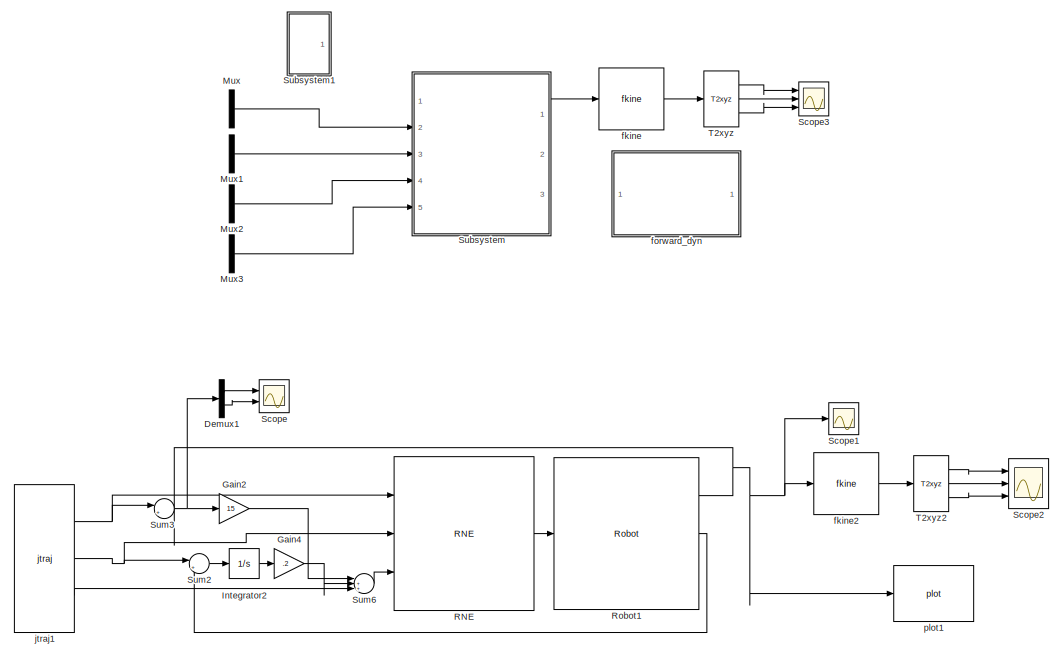
[diagram: root canvas - part 1/3, top right region]
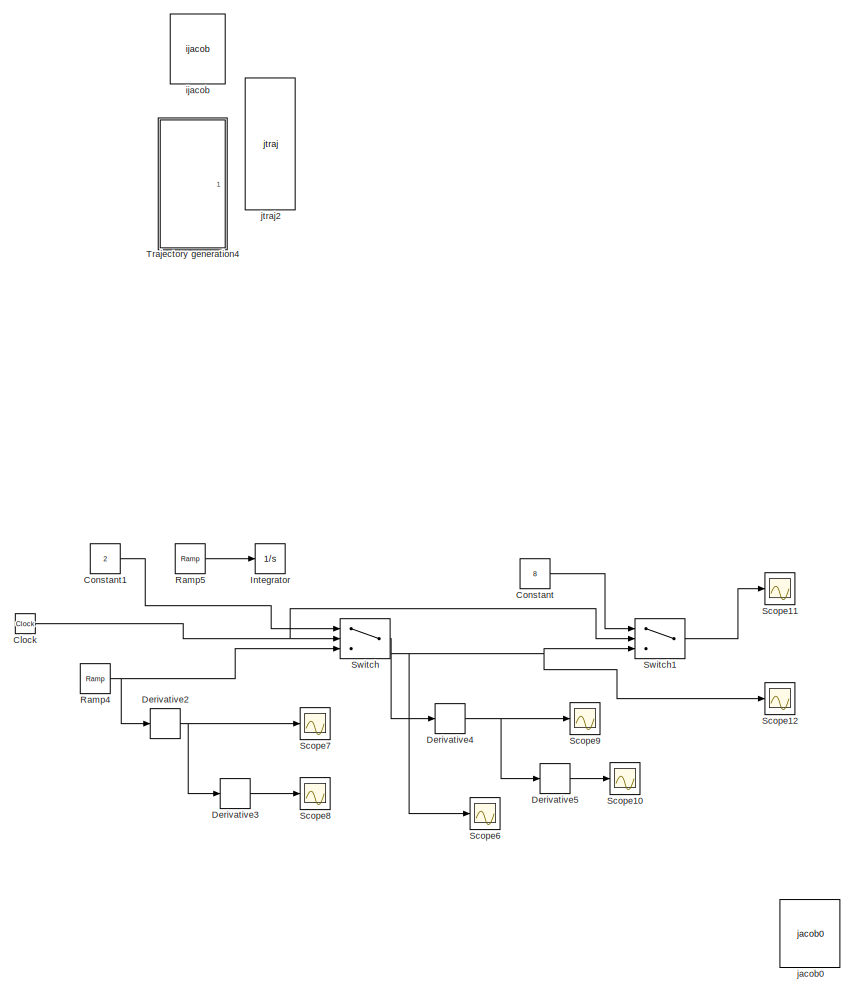
[diagram: root canvas - part 2/3, bottom left region]
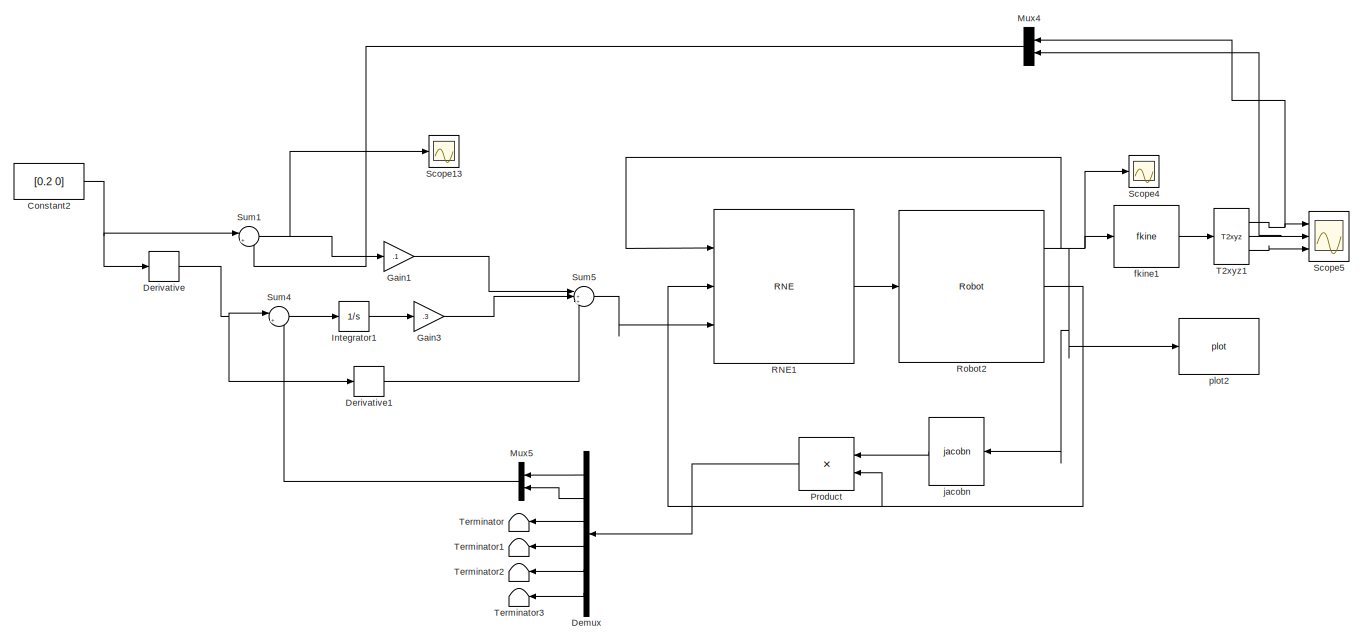
[diagram: root canvas - part 3/3, bottom right region]
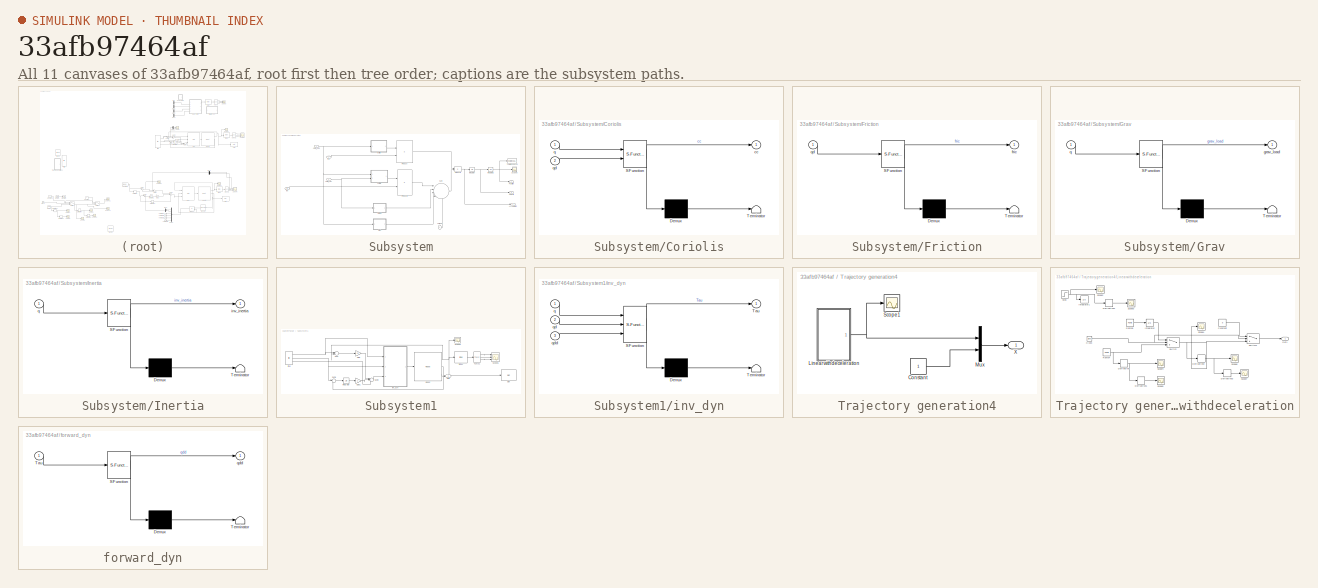
[diagram: thumbnail index - all 11 canvases of the model, root first then tree order]
MODEL slx_33afb97464af
KIND model
CONFIG AbsTol = auto
CONFIG EnableMultiTasking = off
CONFIG FixedStep = auto
CONFIG MaxStep = auto
CONFIG MinStep = auto
CONFIG RelTol = 1e-3
CONFIG SampleTimeConstraint = Unconstrained
CONFIG Solver = VariableStepAuto
CONFIG SolverName = VariableStepAuto
CONFIG StartTime = 0.0
CONFIG StopTime = 10
BLOCK [Clock] Clock
  Commented = on
BLOCK [Constant] Constant
  Commented = on
  Value = 8
BLOCK [Constant] Constant1
  Commented = on
  Value = 2
BLOCK [Constant] Constant2
  Commented = on
  Value = [0.2 0]
BLOCK [Demux] Demux
  Commented = on
  DisplayOption = bar
  Outputs = 6
  Ports = [1, 6]
BLOCK [Demux] Demux1
  DisplayOption = bar
  Outputs = 2
  Ports = [1, 2]
BLOCK [Derivative] Derivative
  Commented = on
BLOCK [Derivative] Derivative1
  Commented = on
BLOCK [Derivative] Derivative2
  Commented = on
BLOCK [Derivative] Derivative3
  Commented = on
BLOCK [Derivative] Derivative4
  Commented = on
BLOCK [Derivative] Derivative5
  Commented = on
BLOCK [Gain] Gain1
  Commented = on
  Gain = .1
  OutDataTypeStr = Inherit: Inherit via internal rule
  ParamDataTypeStr = Inherit: Inherit via internal rule
  SaturateOnIntegerOverflow = off
BLOCK [Gain] Gain2
  Gain = 15
  OutDataTypeStr = Inherit: Inherit via internal rule
  ParamDataTypeStr = Inherit: Inherit via internal rule
  SaturateOnIntegerOverflow = off
BLOCK [Gain] Gain3
  Commented = on
  Gain = .3
  OutDataTypeStr = Inherit: Inherit via internal rule
  ParamDataTypeStr = Inherit: Inherit via internal rule
  SaturateOnIntegerOverflow = off
BLOCK [Gain] Gain4
  Gain = .2
  OutDataTypeStr = Inherit: Inherit via internal rule
  ParamDataTypeStr = Inherit: Inherit via internal rule
  SaturateOnIntegerOverflow = off
BLOCK [Integrator] Integrator
  Commented = on
  IgnoreLimit = on
  InitialCondition = 2
  LowerSaturationLimit = 0
  Ports = [1, 1]
  UpperSaturationLimit = 8
  ZeroCross = off
BLOCK [Integrator] Integrator1
  Commented = on
  Ports = [1, 1]
BLOCK [Integrator] Integrator2
  Ports = [1, 1]
BLOCK [Mux] Mux
  Commented = on
  DisplayOption = bar
  Inputs = 2
  Ports = [2, 1]
BLOCK [Mux] Mux1
  Commented = on
  DisplayOption = bar
  Inputs = 2
  Ports = [2, 1]
BLOCK [Mux] Mux2
  Commented = on
  DisplayOption = bar
  Inputs = 2
  Ports = [2, 1]
BLOCK [Mux] Mux3
  Commented = on
  DisplayOption = bar
  Inputs = 2
  Ports = [2, 1]
BLOCK [Mux] Mux4
  Commented = on
  DisplayOption = bar
  Inputs = 2
  Ports = [2, 1]
BLOCK [Mux] Mux5
  Commented = on
  DisplayOption = bar
  Inputs = 2
  Ports = [2, 1]
BLOCK [Product] Product
  Commented = on
  InputSameDT = off
  Multiplication = Matrix(*)
  OutDataTypeStr = Inherit: Inherit via internal rule
  Ports = [2, 1]
  RndMeth = Floor
  SaturateOnIntegerOverflow = off
BLOCK [Reference] RNE  REF=roblocks/Arm/RNE  (lib defined in mdl_2a292b13c81b, mdl_69400f8cfe22, +12 more)
  Ports = [3, 1]
  SourceBlock = roblocks/Arm/RNE
BLOCK [Reference] RNE1  REF=roblocks/Arm/RNE  (lib defined in mdl_2a292b13c81b, mdl_69400f8cfe22, +12 more)
  Commented = on
  Ports = [3, 1]
  SourceBlock = roblocks/Arm/RNE
BLOCK [Reference] Ramp4  REF=simulink/Sources/Ramp
  Commented = on
  Ports = [0, 1]
  SourceBlock = simulink/Sources/Ramp
  SourceProductBaseCode = SL
  SourceProductName = Simulink
  SourceType = Ramp
BLOCK [Reference] Ramp5  REF=simulink/Sources/Ramp
  Commented = on
  Ports = [0, 1]
  SourceBlock = simulink/Sources/Ramp
  SourceProductBaseCode = SL
  SourceProductName = Simulink
  SourceType = Ramp
BLOCK [Reference] Robot1  REF=roblocks/Arm/Robot  (lib defined in mdl_2a292b13c81b, mdl_69400f8cfe22, +12 more)
  Ports = [1, 3]
  SourceBlock = roblocks/Arm/Robot
BLOCK [Reference] Robot2  REF=roblocks/Arm/Robot  (lib defined in mdl_2a292b13c81b, mdl_69400f8cfe22, +12 more)
  Commented = on
  Ports = [1, 3]
  SourceBlock = roblocks/Arm/Robot
BLOCK [Scope] Scope
  NumInputPorts = 2
  Ports = [2]
  ScopeSpecificationString = Simulink.scopes.TimeScopeBlockCfg('CurrentConfiguration', extmgr.ConfigurationSet(extmgr.Configuration('Core','General UI',true),extmgr.Configuration('Core','Source UI',true),extmgr.Configuration('Sources','WiredSimulink',true,'DataLoggingVariableName','ScopeData1'),extmgr.Configuration('Visuals','Time Domain',true,'SerializedDisplays',{struct('MinYLimReal','-0.00001','MaxYLimReal','0.00001','YLab...<+2001ch>
BLOCK [Scope] Scope1
  NumInputPorts = 1
  Ports = [1]
  ScopeSpecificationString = Simulink.scopes.TimeScopeBlockCfg('CurrentConfiguration', extmgr.ConfigurationSet(extmgr.Configuration('Core','General UI',true),extmgr.Configuration('Core','Source UI',true),extmgr.Configuration('Sources','WiredSimulink',true),extmgr.Configuration('Visuals','Time Domain',true,'SerializedDisplays',{struct('MinYLimReal','-0.19636','MaxYLimReal','1.7672','YLabelReal','','MinYLimMag','0.00000','MaxYL...<+1372ch>
BLOCK [Scope] Scope10
  Commented = on
  NumInputPorts = 1
  Ports = [1]
  ScopeSpecificationString = Simulink.scopes.TimeScopeBlockCfg('CurrentConfiguration', extmgr.ConfigurationSet(extmgr.Configuration('Core','General UI',true),extmgr.Configuration('Core','Source UI',true),extmgr.Configuration('Sources','WiredSimulink',true,'DataLoggingVariableName','ScopeData1','DataLoggingLimitDataPoints',true,'DataLoggingSaveFormat','Array','DataLoggingDecimation','1','DataLoggingDecimateData',true),extmgr.C...<+897ch>
BLOCK [Scope] Scope11
  Commented = on
  NumInputPorts = 1
  Ports = [1]
  ScopeSpecificationString = Simulink.scopes.TimeScopeBlockCfg('CurrentConfiguration', extmgr.ConfigurationSet(extmgr.Configuration('Core','General UI',true),extmgr.Configuration('Core','Source UI',true),extmgr.Configuration('Sources','WiredSimulink',true,'DataLoggingVariableName','ScopeData6','DataLoggingLimitDataPoints',true,'DataLoggingSaveFormat','Array','DataLoggingDecimation','1','DataLoggingDecimateData',true),extmgr.C...<+1633ch>
BLOCK [Scope] Scope12
  Commented = on
  NumInputPorts = 1
  Ports = [1]
  ScopeSpecificationString = Simulink.scopes.TimeScopeBlockCfg('CurrentConfiguration', extmgr.ConfigurationSet(extmgr.Configuration('Core','General UI',true),extmgr.Configuration('Core','Source UI',true),extmgr.Configuration('Sources','WiredSimulink',true,'DataLoggingVariableName','ScopeData7','DataLoggingLimitDataPoints',true,'DataLoggingSaveFormat','Array','DataLoggingDecimation','1','DataLoggingDecimateData',true),extmgr.C...<+1632ch>
BLOCK [Scope] Scope13
  Commented = on
  NumInputPorts = 1
  Ports = [1]
  ScopeSpecificationString = Simulink.scopes.TimeScopeBlockCfg('CurrentConfiguration', extmgr.ConfigurationSet(extmgr.Configuration('Core','General UI',true),extmgr.Configuration('Core','Source UI',true),extmgr.Configuration('Sources','WiredSimulink',true,'DataLoggingVariableName','ScopeData8'),extmgr.Configuration('Visuals','Time Domain',true,'SerializedDisplays',{struct('MinYLimReal','-0.29297','MaxYLimReal','0.51733','YLab...<+1407ch>
BLOCK [Scope] Scope2
  NumInputPorts = 3
  Ports = [3]
  ScopeSpecificationString = Simulink.scopes.TimeScopeBlockCfg('CurrentConfiguration', extmgr.ConfigurationSet(extmgr.Configuration('Core','General UI',true),extmgr.Configuration('Core','Source UI',true),extmgr.Configuration('Sources','WiredSimulink',true,'DataLoggingVariableName','ScopeData1'),extmgr.Configuration('Visuals','Time Domain',true,'SerializedDisplays',{struct('MinYLimReal','0.18124','MaxYLimReal','0.36875','YLabe...<+2773ch>
BLOCK [Scope] Scope3
  Commented = on
  NumInputPorts = 3
  Ports = [3]
  ScopeSpecificationString = Simulink.scopes.TimeScopeBlockCfg('CurrentConfiguration', extmgr.ConfigurationSet(extmgr.Configuration('Core','General UI',true),extmgr.Configuration('Core','Source UI',true),extmgr.Configuration('Sources','WiredSimulink',true,'DataLoggingVariableName','ScopeData2'),extmgr.Configuration('Visuals','Time Domain',true,'SerializedDisplays',{struct('MinYLimReal','0.17079','MaxYLimReal','0.36991','YLabe...<+2774ch>
BLOCK [Scope] Scope4
  Commented = on
  NumInputPorts = 1
  Ports = [1]
  ScopeSpecificationString = Simulink.scopes.TimeScopeBlockCfg('CurrentConfiguration', extmgr.ConfigurationSet(extmgr.Configuration('Core','General UI',true),extmgr.Configuration('Core','Source UI',true),extmgr.Configuration('Sources','WiredSimulink',true,'DataLoggingVariableName','ScopeData4'),extmgr.Configuration('Visuals','Time Domain',true,'SerializedDisplays',{struct('MinYLimReal','-2.36019','MaxYLimReal','9.57822','YLab...<+1415ch>
BLOCK [Scope] Scope5
  Commented = on
  NumInputPorts = 3
  Ports = [3]
  ScopeSpecificationString = Simulink.scopes.TimeScopeBlockCfg('CurrentConfiguration', extmgr.ConfigurationSet(extmgr.Configuration('Core','General UI',true),extmgr.Configuration('Core','Source UI',true),extmgr.Configuration('Sources','WiredSimulink',true,'DataLoggingVariableName','ScopeData7'),extmgr.Configuration('Visuals','Time Domain',true,'SerializedDisplays',{struct('MinYLimReal','-0.30959','MaxYLimReal','0.42329','YLab...<+2778ch>
BLOCK [Scope] Scope6
  Commented = on
  NumInputPorts = 1
  Ports = [1]
  ScopeSpecificationString = Simulink.scopes.TimeScopeBlockCfg('CurrentConfiguration', extmgr.ConfigurationSet(extmgr.Configuration('Core','General UI',true),extmgr.Configuration('Core','Source UI',true),extmgr.Configuration('Sources','WiredSimulink',true,'DataLoggingVariableName','ScopeData2','DataLoggingLimitDataPoints',true,'DataLoggingSaveFormat','Array','DataLoggingDecimation','1','DataLoggingDecimateData',true),extmgr.C...<+898ch>
BLOCK [Scope] Scope7
  Commented = on
  NumInputPorts = 1
  Ports = [1]
  ScopeSpecificationString = Simulink.scopes.TimeScopeBlockCfg('CurrentConfiguration', extmgr.ConfigurationSet(extmgr.Configuration('Core','General UI',true),extmgr.Configuration('Core','Source UI',true),extmgr.Configuration('Sources','WiredSimulink',true,'DataLoggingVariableName','ScopeData3','DataLoggingLimitDataPoints',true,'DataLoggingSaveFormat','Array','DataLoggingDecimation','1','DataLoggingDecimateData',true),extmgr.C...<+897ch>
BLOCK [Scope] Scope8
  Commented = on
  NumInputPorts = 1
  Ports = [1]
  ScopeSpecificationString = Simulink.scopes.TimeScopeBlockCfg('CurrentConfiguration', extmgr.ConfigurationSet(extmgr.Configuration('Core','General UI',true),extmgr.Configuration('Core','Source UI',true),extmgr.Configuration('Sources','WiredSimulink',true,'DataLoggingVariableName','ScopeData4','DataLoggingLimitDataPoints',true,'DataLoggingSaveFormat','Array','DataLoggingDecimation','1','DataLoggingDecimateData',true),extmgr.C...<+897ch>
BLOCK [Scope] Scope9
  Commented = on
  NumInputPorts = 1
  Ports = [1]
  ScopeSpecificationString = Simulink.scopes.TimeScopeBlockCfg('CurrentConfiguration', extmgr.ConfigurationSet(extmgr.Configuration('Core','General UI',true),extmgr.Configuration('Core','Source UI',true),extmgr.Configuration('Sources','WiredSimulink',true,'DataLoggingVariableName','ScopeData5','DataLoggingLimitDataPoints',true,'DataLoggingSaveFormat','Array','DataLoggingDecimation','1','DataLoggingDecimateData',true),extmgr.C...<+898ch>
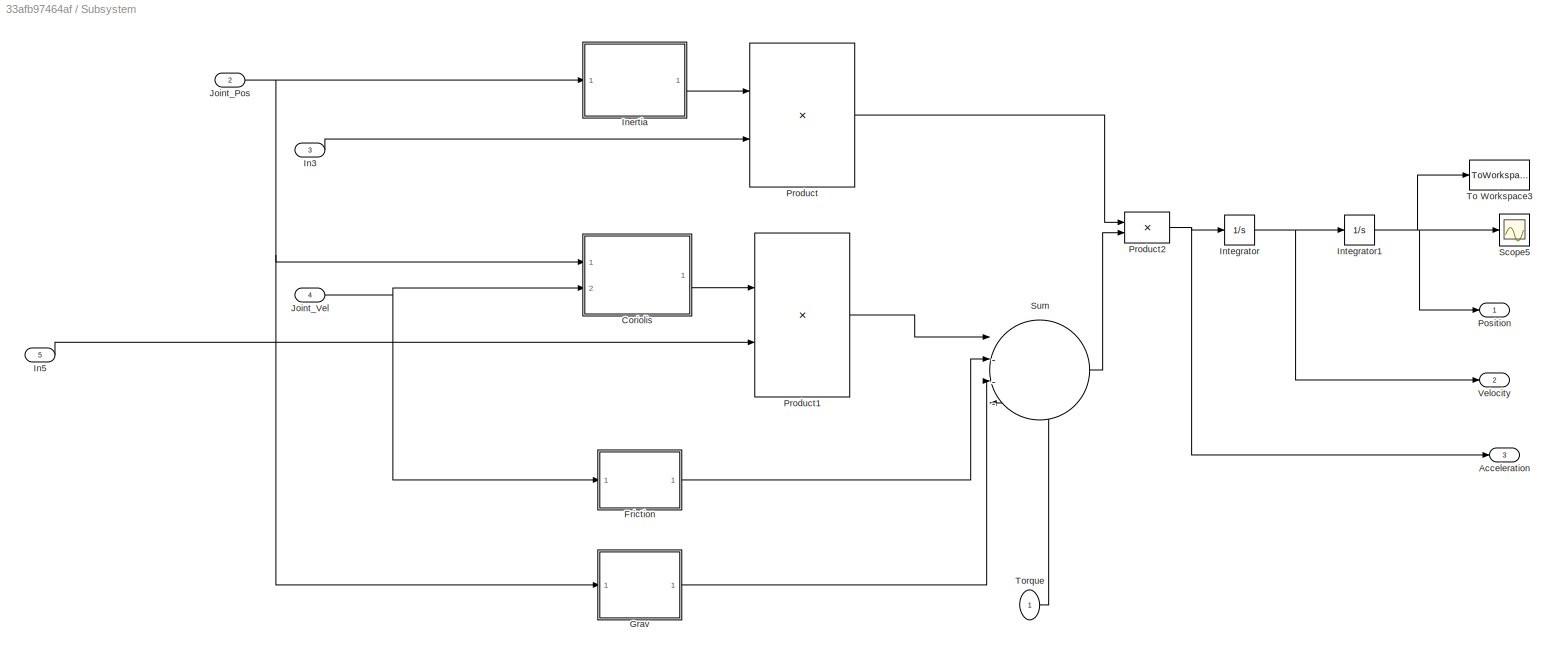
BLOCK [SubSystem] Subsystem
  Commented = on
  Ports = [5, 3]
  RequestExecContextInheritance = off
  Variant = off
BLOCK [Outport] Subsystem/Acceleration
  IconDisplay = Port number
  Port = 3
BLOCK [SubSystem] Subsystem/Coriolis
  ErrorFcn = Stateflow.Translate.translate
  PermitHierarchicalResolution = ExplicitOnly
  Ports = [2, 1]
  RequestExecContextInheritance = off
  SFBlockType = MATLAB Function
  TreatAsAtomicUnit = on
  Variant = off
BLOCK [Demux] Subsystem/Coriolis/ Demux 
  Outputs = 1
  Ports = [1, 1]
BLOCK [S-Function] Subsystem/Coriolis/ SFunction 
  EnableBusSupport = on
  FunctionName = sf_sfun
  PortCounts = [2 2]
  Ports = [2, 2]
  SFcnIsStateOwnerBlock = off
  SFunctionDeploymentMode = off
  Tag = Stateflow S-Function twolink_dynamic_model 9
BLOCK [Terminator] Subsystem/Coriolis/ Terminator 
BLOCK [Outport] Subsystem/Coriolis/cc
  IconDisplay = Port number
BLOCK [Inport] Subsystem/Coriolis/q
  IconDisplay = Port number
BLOCK [Inport] Subsystem/Coriolis/qd
  IconDisplay = Port number
  Port = 2
BLOCK [SubSystem] Subsystem/Friction
  ErrorFcn = Stateflow.Translate.translate
  PermitHierarchicalResolution = ExplicitOnly
  Ports = [1, 1]
  RequestExecContextInheritance = off
  SFBlockType = MATLAB Function
  TreatAsAtomicUnit = on
  Variant = off
BLOCK [Demux] Subsystem/Friction/ Demux 
  Outputs = 1
  Ports = [1, 1]
BLOCK [S-Function] Subsystem/Friction/ SFunction 
  EnableBusSupport = on
  FunctionName = sf_sfun
  PortCounts = [1 2]
  Ports = [1, 2]
  SFcnIsStateOwnerBlock = off
  SFunctionDeploymentMode = off
  Tag = Stateflow S-Function twolink_dynamic_model 10
BLOCK [Terminator] Subsystem/Friction/ Terminator 
BLOCK [Outport] Subsystem/Friction/fric
  IconDisplay = Port number
BLOCK [Inport] Subsystem/Friction/qd
  IconDisplay = Port number
BLOCK [SubSystem] Subsystem/Grav
  ErrorFcn = Stateflow.Translate.translate
  PermitHierarchicalResolution = ExplicitOnly
  Ports = [1, 1]
  RequestExecContextInheritance = off
  SFBlockType = MATLAB Function
  TreatAsAtomicUnit = on
  Variant = off
BLOCK [Demux] Subsystem/Grav/ Demux 
  Outputs = 1
  Ports = [1, 1]
BLOCK [S-Function] Subsystem/Grav/ SFunction 
  EnableBusSupport = on
  FunctionName = sf_sfun
  PortCounts = [1 2]
  Ports = [1, 2]
  SFcnIsStateOwnerBlock = off
  SFunctionDeploymentMode = off
  Tag = Stateflow S-Function twolink_dynamic_model 11
BLOCK [Terminator] Subsystem/Grav/ Terminator 
BLOCK [Outport] Subsystem/Grav/grav_load
  IconDisplay = Port number
BLOCK [Inport] Subsystem/Grav/q
  IconDisplay = Port number
BLOCK [Inport] Subsystem/In3
  IconDisplay = Port number
  Port = 3
BLOCK [Inport] Subsystem/In5
  IconDisplay = Port number
  Port = 5
BLOCK [SubSystem] Subsystem/Inertia
  ErrorFcn = Stateflow.Translate.translate
  PermitHierarchicalResolution = ExplicitOnly
  Ports = [1, 1]
  RequestExecContextInheritance = off
  SFBlockType = MATLAB Function
  TreatAsAtomicUnit = on
  Variant = off
BLOCK [Demux] Subsystem/Inertia/ Demux 
  Outputs = 1
  Ports = [1, 1]
BLOCK [S-Function] Subsystem/Inertia/ SFunction 
  EnableBusSupport = on
  FunctionName = sf_sfun
  PortCounts = [1 2]
  Ports = [1, 2]
  SFcnIsStateOwnerBlock = off
  SFunctionDeploymentMode = off
  Tag = Stateflow S-Function twolink_dynamic_model 8
BLOCK [Terminator] Subsystem/Inertia/ Terminator 
BLOCK [Outport] Subsystem/Inertia/inv_inertia
  IconDisplay = Port number
BLOCK [Inport] Subsystem/Inertia/q
  IconDisplay = Port number
BLOCK [Integrator] Subsystem/Integrator
  Ports = [1, 1]
BLOCK [Integrator] Subsystem/Integrator1
  Ports = [1, 1]
BLOCK [Inport] Subsystem/Joint_Pos
  IconDisplay = Port number
  Port = 2
BLOCK [Inport] Subsystem/Joint_Vel
  IconDisplay = Port number
  Port = 4
BLOCK [Outport] Subsystem/Position
  IconDisplay = Port number
BLOCK [Product] Subsystem/Product
  InputSameDT = off
  Multiplication = Matrix(*)
  OutDataTypeStr = Inherit: Inherit via internal rule
  Ports = [2, 1]
  RndMeth = Floor
  SaturateOnIntegerOverflow = off
BLOCK [Product] Subsystem/Product1
  InputSameDT = off
  Multiplication = Matrix(*)
  OutDataTypeStr = Inherit: Inherit via internal rule
  Ports = [2, 1]
  RndMeth = Floor
  SaturateOnIntegerOverflow = off
BLOCK [Product] Subsystem/Product2
  InputSameDT = off
  OutDataTypeStr = Inherit: Inherit via internal rule
  Ports = [2, 1]
  RndMeth = Floor
  SaturateOnIntegerOverflow = off
BLOCK [Scope] Subsystem/Scope5
  NumInputPorts = 1
  Ports = [1]
  ScopeSpecificationString = Simulink.scopes.TimeScopeBlockCfg('CurrentConfiguration', extmgr.ConfigurationSet(extmgr.Configuration('Core','General UI',true),extmgr.Configuration('Core','Source UI',true),extmgr.Configuration('Sources','WiredSimulink',true,'DataLoggingVariableName','ScopeData3'),extmgr.Configuration('Visuals','Time Domain',true,'SerializedDisplays',{struct('MinYLimReal','-2.11885','MaxYLimReal','0.53385','YLab...<+1388ch>
BLOCK [Sum] Subsystem/Sum
  IconShape = round
  InputSameDT = off
  Inputs = |---+
  OutDataTypeStr = Inherit: Inherit via internal rule
  Ports = [4, 1]
  SaturateOnIntegerOverflow = off
BLOCK [ToWorkspace] Subsystem/To Workspace3
  FixptAsFi = on
  MaxDataPoints = inf
  Ports = [1]
  SampleTime = -1
  Save2DSignal = 3-D array (concatenate along third dimension)
  VariableName = simout3
BLOCK [Inport] Subsystem/Torque
  IconDisplay = Port number
BLOCK [Outport] Subsystem/Velocity
  IconDisplay = Port number
  Port = 2
BLOCK [SubSystem] Subsystem1
  Commented = on
  Ports = [0, 1]
  RequestExecContextInheritance = off
  Variant = off
BLOCK [Gain] Subsystem1/Gain
  Commented = on
  Gain = 20
  OutDataTypeStr = Inherit: Inherit via internal rule
  ParamDataTypeStr = Inherit: Inherit via internal rule
  SaturateOnIntegerOverflow = off
BLOCK [Gain] Subsystem1/Gain1
  Commented = on
  Gain = .2
  OutDataTypeStr = Inherit: Inherit via internal rule
  ParamDataTypeStr = Inherit: Inherit via internal rule
  SaturateOnIntegerOverflow = off
BLOCK [Integrator] Subsystem1/Integrator
  Commented = on
  Ports = [1, 1]
BLOCK [Outport] Subsystem1/Out1
  IconDisplay = Port number
BLOCK [Reference] Subsystem1/Robot  REF=roblocks/Arm/Robot  (lib defined in mdl_2a292b13c81b, mdl_69400f8cfe22, +12 more)
  Commented = on
  Ports = [1, 3]
  SourceBlock = roblocks/Arm/Robot
BLOCK [Scope] Subsystem1/Scope5
  Commented = on
  NumInputPorts = 1
  Ports = [1]
  ScopeSpecificationString = Simulink.scopes.TimeScopeBlockCfg('CurrentConfiguration', extmgr.ConfigurationSet(extmgr.Configuration('Core','General UI',true),extmgr.Configuration('Core','Source UI',true),extmgr.Configuration('Sources','WiredSimulink',true,'DataLoggingVariableName','ScopeData5'),extmgr.Configuration('Visuals','Time Domain',true,'SerializedDisplays',{struct('MinYLimReal','-2.04052','MaxYLimReal','3.59347','YLab...<+1413ch>
BLOCK [Scope] Subsystem1/Scope6
  Commented = on
  NumInputPorts = 3
  Ports = [3]
  ScopeSpecificationString = Simulink.scopes.TimeScopeBlockCfg('CurrentConfiguration', extmgr.ConfigurationSet(extmgr.Configuration('Core','General UI',true),extmgr.Configuration('Core','Source UI',true),extmgr.Configuration('Sources','WiredSimulink',true,'DataLoggingVariableName','ScopeData6'),extmgr.Configuration('Visuals','Time Domain',true,'SerializedDisplays',{struct('MinYLimReal','-0.43448','MaxYLimReal','0.43716','YLab...<+2778ch>
BLOCK [Sum] Subsystem1/Sum
  Commented = on
  IconShape = round
  InputSameDT = off
  Inputs = |+-
  OutDataTypeStr = Inherit: Inherit via internal rule
  Ports = [2, 1]
  SaturateOnIntegerOverflow = off
BLOCK [Sum] Subsystem1/Sum1
  Commented = on
  IconShape = round
  InputSameDT = off
  Inputs = |+-
  OutDataTypeStr = Inherit: Inherit via internal rule
  Ports = [2, 1]
  SaturateOnIntegerOverflow = off
BLOCK [Sum] Subsystem1/Sum2
  Commented = on
  IconShape = round
  InputSameDT = off
  Inputs = |+++
  OutDataTypeStr = Inherit: Inherit via internal rule
  Ports = [3, 1]
  SaturateOnIntegerOverflow = off
BLOCK [Reference] Subsystem1/T2xyz1  REF=roblocks/Toolbox/T2xyz  (lib defined in mdl_2a292b13c81b, mdl_69400f8cfe22, +12 more)
  Commented = on
  Ports = [1, 3]
  SourceBlock = roblocks/Toolbox/T2xyz
BLOCK [Reference] Subsystem1/fkine1  REF=roblocks/Arm/fkine  (lib defined in mdl_2a292b13c81b, mdl_69400f8cfe22, +12 more)
  Commented = on
  Ports = [1, 1]
  SourceBlock = roblocks/Arm/fkine
BLOCK [SubSystem] Subsystem1/inv_dyn
  Commented = on
  ErrorFcn = Stateflow.Translate.translate
  PermitHierarchicalResolution = ExplicitOnly
  Ports = [3, 1]
  RequestExecContextInheritance = off
  SFBlockType = MATLAB Function
  TreatAsAtomicUnit = on
  Variant = off
BLOCK [Demux] Subsystem1/inv_dyn/ Demux 
  Outputs = 1
  Ports = [1, 1]
BLOCK [S-Function] Subsystem1/inv_dyn/ SFunction 
  EnableBusSupport = on
  FunctionName = sf_sfun
  PortCounts = [3 2]
  Ports = [3, 2]
  SFcnIsStateOwnerBlock = off
  SFunctionDeploymentMode = off
  Tag = Stateflow S-Function twolink_dynamic_model 2
BLOCK [Terminator] Subsystem1/inv_dyn/ Terminator 
BLOCK [Outport] Subsystem1/inv_dyn/Tau
  IconDisplay = Port number
BLOCK [Inport] Subsystem1/inv_dyn/q
  IconDisplay = Port number
BLOCK [Inport] Subsystem1/inv_dyn/qd
  IconDisplay = Port number
  Port = 2
BLOCK [Inport] Subsystem1/inv_dyn/qdd
  IconDisplay = Port number
  Port = 3
BLOCK [Reference] Subsystem1/jtraj  REF=roblocks/Toolbox/jtraj  (lib defined in mdl_2a292b13c81b, mdl_69400f8cfe22, +12 more)
  Commented = on
  Ports = [0, 3]
  SourceBlock = roblocks/Toolbox/jtraj
BLOCK [Reference] Subsystem1/plot  REF=roblocks/Arm/plot  (lib defined in mdl_2a292b13c81b, mdl_69400f8cfe22, +12 more)
  Commented = on
  Ports = [1]
  SourceBlock = roblocks/Arm/plot
BLOCK [Sum] Sum1
  Commented = on
  IconShape = round
  InputSameDT = off
  Inputs = |+-
  OutDataTypeStr = Inherit: Inherit via internal rule
  Ports = [2, 1]
  SaturateOnIntegerOverflow = off
BLOCK [Sum] Sum2
  IconShape = round
  InputSameDT = off
  Inputs = |+-
  OutDataTypeStr = Inherit: Inherit via internal rule
  Ports = [2, 1]
  SaturateOnIntegerOverflow = off
BLOCK [Sum] Sum3
  IconShape = round
  InputSameDT = off
  Inputs = |+-
  OutDataTypeStr = Inherit: Inherit via internal rule
  Ports = [2, 1]
  SaturateOnIntegerOverflow = off
BLOCK [Sum] Sum4
  Commented = on
  IconShape = round
  InputSameDT = off
  Inputs = |+-
  OutDataTypeStr = Inherit: Inherit via internal rule
  Ports = [2, 1]
  SaturateOnIntegerOverflow = off
BLOCK [Sum] Sum5
  Commented = on
  IconShape = round
  InputSameDT = off
  Inputs = |+++
  OutDataTypeStr = Inherit: Inherit via internal rule
  Ports = [3, 1]
  SaturateOnIntegerOverflow = off
BLOCK [Sum] Sum6
  IconShape = round
  InputSameDT = off
  Inputs = |+++
  OutDataTypeStr = Inherit: Inherit via internal rule
  Ports = [3, 1]
  SaturateOnIntegerOverflow = off
BLOCK [Switch] Switch
  Commented = on
  InputSameDT = off
  RndMeth = Zero
  Threshold = 5
  ZeroCross = off
BLOCK [Switch] Switch1
  Commented = on
  InputSameDT = off
  RndMeth = Zero
  Threshold = 7
  ZeroCross = off
BLOCK [Reference] T2xyz  REF=roblocks/Toolbox/T2xyz  (lib defined in mdl_2a292b13c81b, mdl_69400f8cfe22, +12 more)
  Commented = on
  Ports = [1, 3]
  SourceBlock = roblocks/Toolbox/T2xyz
BLOCK [Reference] T2xyz1  REF=roblocks/Toolbox/T2xyz  (lib defined in mdl_2a292b13c81b, mdl_69400f8cfe22, +12 more)
  Commented = on
  Ports = [1, 3]
  SourceBlock = roblocks/Toolbox/T2xyz
BLOCK [Reference] T2xyz2  REF=roblocks/Toolbox/T2xyz  (lib defined in mdl_2a292b13c81b, mdl_69400f8cfe22, +12 more)
  Ports = [1, 3]
  SourceBlock = roblocks/Toolbox/T2xyz
BLOCK [Terminator] Terminator
  Commented = on
BLOCK [Terminator] Terminator1
  Commented = on
BLOCK [Terminator] Terminator2
  Commented = on
BLOCK [Terminator] Terminator3
  Commented = on
BLOCK [SubSystem] Trajectory generation4
  Commented = on
  Ports = [0, 1]
  RequestExecContextInheritance = off
  Variant = off
BLOCK [Constant] Trajectory generation4/Constant
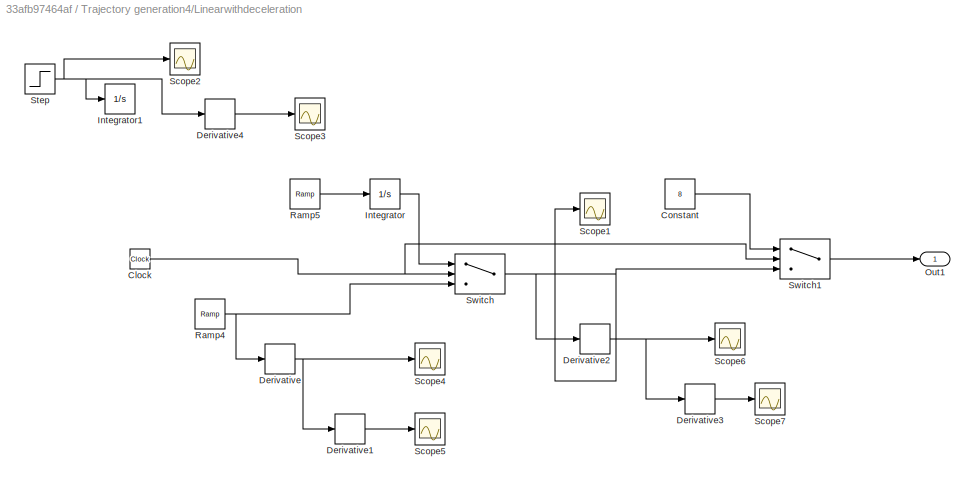
BLOCK [SubSystem] Trajectory generation4/Linearwithdeceleration
  Ports = [0, 1]
  RequestExecContextInheritance = off
  Variant = off
BLOCK [Clock] Trajectory generation4/Linearwithdeceleration/Clock
BLOCK [Constant] Trajectory generation4/Linearwithdeceleration/Constant
  Value = 8
BLOCK [Derivative] Trajectory generation4/Linearwithdeceleration/Derivative
BLOCK [Derivative] Trajectory generation4/Linearwithdeceleration/Derivative1
BLOCK [Derivative] Trajectory generation4/Linearwithdeceleration/Derivative2
BLOCK [Derivative] Trajectory generation4/Linearwithdeceleration/Derivative3
BLOCK [Derivative] Trajectory generation4/Linearwithdeceleration/Derivative4
  Commented = on
BLOCK [Integrator] Trajectory generation4/Linearwithdeceleration/Integrator
  IgnoreLimit = on
  InitialCondition = 2
  LowerSaturationLimit = 0
  Ports = [1, 1]
  UpperSaturationLimit = 8
  ZeroCross = off
BLOCK [Integrator] Trajectory generation4/Linearwithdeceleration/Integrator1
  Commented = on
  InitialCondition = 1
  Ports = [1, 1]
  ZeroCross = off
BLOCK [Outport] Trajectory generation4/Linearwithdeceleration/Out1
  IconDisplay = Port number
BLOCK [Reference] Trajectory generation4/Linearwithdeceleration/Ramp4  REF=simulink/Sources/Ramp
  Ports = [0, 1]
  SourceBlock = simulink/Sources/Ramp
  SourceProductBaseCode = SL
  SourceProductName = Simulink
  SourceType = Ramp
BLOCK [Reference] Trajectory generation4/Linearwithdeceleration/Ramp5  REF=simulink/Sources/Ramp
  Ports = [0, 1]
  SourceBlock = simulink/Sources/Ramp
  SourceProductBaseCode = SL
  SourceProductName = Simulink
  SourceType = Ramp
BLOCK [Scope] Trajectory generation4/Linearwithdeceleration/Scope1
  NumInputPorts = 1
  Ports = [1]
  ScopeSpecificationString = C++SS(StrPVP('Location','[10, 60, 1364, 738]'),StrPVP('Open','off'),MxPVP('AxesTitles',53,'struct(''axes1'',''%<SignalLabel>'')'),MxPVP('ScopeGraphics',56,'struct(''FigureColor'',''[0.5 0.5 0.5]'',''AxesColor'',''[0 0 0]'',''AxesTickColor'',''[1 1 1]'',''LineColors'',''[1 1 0;1 0 1;0 1 1;1 0 0;0 1 0;0 0 1]'',''LineStyles'',''-|-|-|-|-|-'',''LineWidths'',''[0.5 0.5 0.5 0.5 0.5 0.5]'',''MarkerStyles...<+196ch>
BLOCK [Scope] Trajectory generation4/Linearwithdeceleration/Scope2
  Commented = on
  NumInputPorts = 1
  Ports = [1]
  ScopeSpecificationString = C++SS(StrPVP('Location','[10, 60, 1364, 738]'),StrPVP('Open','off'),MxPVP('AxesTitles',53,'struct(''axes1'',''%<SignalLabel>'')'),MxPVP('ScopeGraphics',56,'struct(''FigureColor'',''[0.5 0.5 0.5]'',''AxesColor'',''[0 0 0]'',''AxesTickColor'',''[1 1 1]'',''LineColors'',''[1 1 0;1 0 1;0 1 1;1 0 0;0 1 0;0 0 1]'',''LineStyles'',''-|-|-|-|-|-'',''LineWidths'',''[0.5 0.5 0.5 0.5 0.5 0.5]'',''MarkerStyles...<+237ch>
BLOCK [Scope] Trajectory generation4/Linearwithdeceleration/Scope3
  Commented = on
  NumInputPorts = 1
  Ports = [1]
  ScopeSpecificationString = C++SS(StrPVP('Location','[10, 60, 1364, 738]'),StrPVP('Open','off'),MxPVP('AxesTitles',53,'struct(''axes1'',''%<SignalLabel>'')'),MxPVP('ScopeGraphics',56,'struct(''FigureColor'',''[0.5 0.5 0.5]'',''AxesColor'',''[0 0 0]'',''AxesTickColor'',''[1 1 1]'',''LineColors'',''[1 1 0;1 0 1;0 1 1;1 0 0;0 1 0;0 0 1]'',''LineStyles'',''-|-|-|-|-|-'',''LineWidths'',''[0.5 0.5 0.5 0.5 0.5 0.5]'',''MarkerStyles...<+237ch>
BLOCK [Scope] Trajectory generation4/Linearwithdeceleration/Scope4
  NumInputPorts = 1
  Ports = [1]
  ScopeSpecificationString = C++SS(StrPVP('Location','[1, 49, 1367, 727]'),StrPVP('Open','off'),MxPVP('AxesTitles',53,'struct(''axes1'',''%<SignalLabel>'')'),MxPVP('ScopeGraphics',56,'struct(''FigureColor'',''[0.5 0.5 0.5]'',''AxesColor'',''[0 0 0]'',''AxesTickColor'',''[1 1 1]'',''LineColors'',''[1 1 0;1 0 1;0 1 1;1 0 0;0 1 0;0 0 1]'',''LineStyles'',''-|-|-|-|-|-'',''LineWidths'',''[0.5 0.5 0.5 0.5 0.5 0.5]'',''MarkerStyles'...<+195ch>  <repeated x3 — deduplicated; at blocks: Scope4, Scope5, Scope7>
BLOCK [Scope] Trajectory generation4/Linearwithdeceleration/Scope5
  NumInputPorts = 1
  Ports = [1]
BLOCK [Scope] Trajectory generation4/Linearwithdeceleration/Scope6
  NumInputPorts = 1
  Ports = [1]
  ScopeSpecificationString = C++SS(StrPVP('Location','[10, 60, 1372, 738]'),StrPVP('Open','off'),MxPVP('AxesTitles',53,'struct(''axes1'',''%<SignalLabel>'')'),MxPVP('ScopeGraphics',56,'struct(''FigureColor'',''[0.5 0.5 0.5]'',''AxesColor'',''[0 0 0]'',''AxesTickColor'',''[1 1 1]'',''LineColors'',''[1 1 0;1 0 1;0 1 1;1 0 0;0 1 0;0 0 1]'',''LineStyles'',''-|-|-|-|-|-'',''LineWidths'',''[0.5 0.5 0.5 0.5 0.5 0.5]'',''MarkerStyles...<+196ch>
BLOCK [Scope] Trajectory generation4/Linearwithdeceleration/Scope7
  NumInputPorts = 1
  Ports = [1]
BLOCK [Step] Trajectory generation4/Linearwithdeceleration/Step
  After = -0.5
  Commented = on
  SampleTime = 0
  Time = 5
BLOCK [Switch] Trajectory generation4/Linearwithdeceleration/Switch
  InputSameDT = off
  RndMeth = Zero
  Threshold = 5
  ZeroCross = off
BLOCK [Switch] Trajectory generation4/Linearwithdeceleration/Switch1
  InputSameDT = off
  RndMeth = Zero
  Threshold = 7
  ZeroCross = off
BLOCK [Mux] Trajectory generation4/Mux
  DisplayOption = bar
  Inputs = 2
  Ports = [2, 1]
BLOCK [Scope] Trajectory generation4/Scope1
  NumInputPorts = 1
  Ports = [1]
  ScopeSpecificationString = Simulink.scopes.TimeScopeBlockCfg('CurrentConfiguration', extmgr.ConfigurationSet(extmgr.Configuration('Core','General UI',true),extmgr.Configuration('Core','Source UI',true),extmgr.Configuration('Sources','WiredSimulink',true,'DataLoggingVariableName','ScopeData33','DataLoggingLimitDataPoints',true,'DataLoggingSaveFormat','Array','DataLoggingDecimation','1','DataLoggingDecimateData',true),extmgr....<+1665ch>
BLOCK [Outport] Trajectory generation4/X
  IconDisplay = Port number
BLOCK [Reference] fkine  REF=roblocks/Arm/fkine  (lib defined in mdl_2a292b13c81b, mdl_69400f8cfe22, +12 more)
  Commented = on
  Ports = [1, 1]
  SourceBlock = roblocks/Arm/fkine
BLOCK [Reference] fkine1  REF=roblocks/Arm/fkine  (lib defined in mdl_2a292b13c81b, mdl_69400f8cfe22, +12 more)
  Commented = on
  Ports = [1, 1]
  SourceBlock = roblocks/Arm/fkine
BLOCK [Reference] fkine2  REF=roblocks/Arm/fkine  (lib defined in mdl_2a292b13c81b, mdl_69400f8cfe22, +12 more)
  Ports = [1, 1]
  SourceBlock = roblocks/Arm/fkine
BLOCK [SubSystem] forward_dyn
  Commented = on
  ErrorFcn = Stateflow.Translate.translate
  PermitHierarchicalResolution = ExplicitOnly
  Ports = [1, 1]
  RequestExecContextInheritance = off
  SFBlockType = MATLAB Function
  TreatAsAtomicUnit = on
  Variant = off
BLOCK [Demux] forward_dyn/ Demux 
  Outputs = 1
  Ports = [1, 1]
BLOCK [S-Function] forward_dyn/ SFunction 
  EnableBusSupport = on
  FunctionName = sf_sfun
  PortCounts = [1 2]
  Ports = [1, 2]
  SFcnIsStateOwnerBlock = off
  SFunctionDeploymentMode = off
  Tag = Stateflow S-Function twolink_dynamic_model 1
BLOCK [Terminator] forward_dyn/ Terminator 
BLOCK [Inport] forward_dyn/Tau
  IconDisplay = Port number
BLOCK [Outport] forward_dyn/qdd
  IconDisplay = Port number
BLOCK [Reference] ijacob  REF=roblocks/Arm/ijacob  (lib defined in mdl_2a292b13c81b, mdl_69400f8cfe22, +12 more)
  Commented = on
  Ports = [1, 1]
  SourceBlock = roblocks/Arm/ijacob
BLOCK [Reference] jacob0   REF=roblocks/Arm/jacob0  (lib defined in mdl_2a292b13c81b, mdl_69400f8cfe22, +12 more)

  Commented = on
  Ports = [1, 1]
  SourceBlock = roblocks/Arm/jacob0
BLOCK [Reference] jacobn  REF=roblocks/Arm/jacobn  (lib defined in mdl_2a292b13c81b, mdl_69400f8cfe22, +12 more)
  Commented = on
  Ports = [1, 1]
  SourceBlock = roblocks/Arm/jacobn
BLOCK [Reference] jtraj1  REF=roblocks/Toolbox/jtraj  (lib defined in mdl_2a292b13c81b, mdl_69400f8cfe22, +12 more)
  Ports = [0, 3]
  SourceBlock = roblocks/Toolbox/jtraj
BLOCK [Reference] jtraj2  REF=roblocks/Toolbox/jtraj  (lib defined in mdl_2a292b13c81b, mdl_69400f8cfe22, +12 more)
  Commented = on
  Ports = [0, 3]
  SourceBlock = roblocks/Toolbox/jtraj
BLOCK [Reference] plot1  REF=roblocks/Arm/plot  (lib defined in mdl_2a292b13c81b, mdl_69400f8cfe22, +12 more)
  Ports = [1]
  SourceBlock = roblocks/Arm/plot
BLOCK [Reference] plot2  REF=roblocks/Arm/plot  (lib defined in mdl_2a292b13c81b, mdl_69400f8cfe22, +12 more)
  Commented = on
  Ports = [1]
  SourceBlock = roblocks/Arm/plot
NET Clock:1 -> Switch1:2, Switch:2
LINE Constant1:1 -> Switch:1
NET Constant2:1 -> Derivative:1, Sum1:1
LINE Constant:1 -> Switch1:1
LINE Demux1:1 -> Scope:1
LINE Demux1:2 -> Scope:2
LINE Demux:1 -> Mux5:1
LINE Demux:2 -> Mux5:2
LINE Demux:3 -> Terminator:1
LINE Demux:4 -> Terminator1:1
LINE Demux:5 -> Terminator2:1
LINE Demux:6 -> Terminator3:1
LINE Derivative1:1 -> Sum5:3
NET Derivative2:1 -> Derivative3:1, Scope7:1
LINE Derivative3:1 -> Scope8:1
NET Derivative4:1 -> Derivative5:1, Scope9:1
LINE Derivative5:1 -> Scope10:1
NET Derivative:1 -> Derivative1:1, Sum4:1
LINE Gain1:1 -> Sum5:1
LINE Gain2:1 -> Sum6:1
LINE Gain3:1 -> Sum5:2
LINE Gain4:1 -> Sum6:2
LINE Integrator1:1 -> Gain3:1
LINE Integrator2:1 -> Gain4:1
LINE Mux1:1 -> Subsystem:3
LINE Mux2:1 -> Subsystem:4
LINE Mux3:1 -> Subsystem:5
LINE Mux4:1 -> Sum1:2
LINE Mux5:1 -> Sum4:2
LINE Mux:1 -> Subsystem:2
LINE Product:1 -> Demux:1
LINE RNE1:1 -> Robot2:1
LINE RNE:1 -> Robot1:1
NET Ramp4:1 -> Derivative2:1, Switch:3
LINE Ramp5:1 -> Integrator:1
NET Robot1:1 -> Scope1:1, Sum3:2, fkine2:1, plot1:1
LINE Robot1:2 -> Sum2:2
NET Robot2:1 -> RNE1:1, Scope4:1, fkine1:1, jacobn:1, plot2:1
NET Robot2:2 -> Product:2, RNE1:2
LINE Subsystem/Coriolis:1 -> Subsystem/Product1:1
LINE Subsystem/Friction:1 -> Subsystem/Sum:2
LINE Subsystem/Grav:1 -> Subsystem/Sum:3
LINE Subsystem/In3:1 -> Subsystem/Product:2
LINE Subsystem/In5:1 -> Subsystem/Product1:2
LINE Subsystem/Inertia:1 -> Subsystem/Product:1
NET Subsystem/Integrator1:1 -> Subsystem/Position:1, Subsystem/Scope5:1, Subsystem/To Workspace3:1
NET Subsystem/Integrator:1 -> Subsystem/Integrator1:1, Subsystem/Velocity:1
NET Subsystem/Joint_Pos:1 -> Subsystem/Coriolis:1, Subsystem/Grav:1, Subsystem/Inertia:1
NET Subsystem/Joint_Vel:1 -> Subsystem/Coriolis:2, Subsystem/Friction:1
LINE Subsystem/Product1:1 -> Subsystem/Sum:1
NET Subsystem/Product2:1 -> Subsystem/Acceleration:1, Subsystem/Integrator:1
LINE Subsystem/Product:1 -> Subsystem/Product2:1
LINE Subsystem/Sum:1 -> Subsystem/Product2:2
LINE Subsystem/Torque:1 -> Subsystem/Sum:4
LINE Subsystem1/Gain1:1 -> Subsystem1/Sum2:2
LINE Subsystem1/Gain:1 -> Subsystem1/Sum2:1
LINE Subsystem1/Integrator:1 -> Subsystem1/Gain1:1
NET Subsystem1/Robot:1 -> Subsystem1/Scope5:1, Subsystem1/Sum:2, Subsystem1/fkine1:1, Subsystem1/plot:1
LINE Subsystem1/Robot:2 -> Subsystem1/Sum1:2
LINE Subsystem1/Robot:3 -> Subsystem1/Out1:1
LINE Subsystem1/Sum1:1 -> Subsystem1/Integrator:1
LINE Subsystem1/Sum2:1 -> Subsystem1/inv_dyn:3
LINE Subsystem1/Sum:1 -> Subsystem1/Gain:1
LINE Subsystem1/T2xyz1:1 -> Subsystem1/Scope6:1
LINE Subsystem1/T2xyz1:2 -> Subsystem1/Scope6:2
LINE Subsystem1/T2xyz1:3 -> Subsystem1/Scope6:3
LINE Subsystem1/fkine1:1 -> Subsystem1/T2xyz1:1
LINE Subsystem1/inv_dyn:1 -> Subsystem1/Robot:1
NET Subsystem1/jtraj:1 -> Subsystem1/Sum:1, Subsystem1/inv_dyn:1
NET Subsystem1/jtraj:2 -> Subsystem1/Sum1:1, Subsystem1/inv_dyn:2
LINE Subsystem1/jtraj:3 -> Subsystem1/Sum2:3
LINE Subsystem:1 -> fkine:1
NET Sum1:1 -> Gain1:1, Scope13:1
LINE Sum2:1 -> Integrator2:1
NET Sum3:1 -> Demux1:1, Gain2:1
LINE Sum4:1 -> Integrator1:1
LINE Sum5:1 -> RNE1:3
LINE Sum6:1 -> RNE:3
LINE Switch1:1 -> Scope11:1
NET Switch:1 -> Derivative4:1, Scope12:1, Scope6:1, Switch1:3
NET T2xyz1:1 -> Mux4:1, Scope5:1
NET T2xyz1:2 -> Mux4:2, Scope5:2
LINE T2xyz1:3 -> Scope5:3
LINE T2xyz2:1 -> Scope2:1
LINE T2xyz2:2 -> Scope2:2
LINE T2xyz2:3 -> Scope2:3
LINE T2xyz:1 -> Scope3:1
LINE T2xyz:2 -> Scope3:2
LINE T2xyz:3 -> Scope3:3
LINE Trajectory generation4/Constant:1 -> Trajectory generation4/Mux:2
NET Trajectory generation4/Linearwithdeceleration/Clock:1 -> Trajectory generation4/Linearwithdeceleration/Switch1:2, Trajectory generation4/Linearwithdeceleration/Switch:2
LINE Trajectory generation4/Linearwithdeceleration/Constant:1 -> Trajectory generation4/Linearwithdeceleration/Switch1:1
LINE Trajectory generation4/Linearwithdeceleration/Derivative1:1 -> Trajectory generation4/Linearwithdeceleration/Scope5:1
NET Trajectory generation4/Linearwithdeceleration/Derivative2:1 -> Trajectory generation4/Linearwithdeceleration/Derivative3:1, Trajectory generation4/Linearwithdeceleration/Scope6:1
LINE Trajectory generation4/Linearwithdeceleration/Derivative3:1 -> Trajectory generation4/Linearwithdeceleration/Scope7:1
LINE Trajectory generation4/Linearwithdeceleration/Derivative4:1 -> Trajectory generation4/Linearwithdeceleration/Scope3:1
NET Trajectory generation4/Linearwithdeceleration/Derivative:1 -> Trajectory generation4/Linearwithdeceleration/Derivative1:1, Trajectory generation4/Linearwithdeceleration/Scope4:1
LINE Trajectory generation4/Linearwithdeceleration/Integrator:1 -> Trajectory generation4/Linearwithdeceleration/Switch:1
NET Trajectory generation4/Linearwithdeceleration/Ramp4:1 -> Trajectory generation4/Linearwithdeceleration/Derivative:1, Trajectory generation4/Linearwithdeceleration/Switch:3
LINE Trajectory generation4/Linearwithdeceleration/Ramp5:1 -> Trajectory generation4/Linearwithdeceleration/Integrator:1
NET Trajectory generation4/Linearwithdeceleration/Step:1 -> Trajectory generation4/Linearwithdeceleration/Derivative4:1, Trajectory generation4/Linearwithdeceleration/Integrator1:1, Trajectory generation4/Linearwithdeceleration/Scope2:1
LINE Trajectory generation4/Linearwithdeceleration/Switch1:1 -> Trajectory generation4/Linearwithdeceleration/Out1:1
NET Trajectory generation4/Linearwithdeceleration/Switch:1 -> Trajectory generation4/Linearwithdeceleration/Derivative2:1, Trajectory generation4/Linearwithdeceleration/Scope1:1, Trajectory generation4/Linearwithdeceleration/Switch1:3
NET Trajectory generation4/Linearwithdeceleration:1 -> Trajectory generation4/Mux:1, Trajectory generation4/Scope1:1
LINE Trajectory generation4/Mux:1 -> Trajectory generation4/X:1
LINE fkine1:1 -> T2xyz1:1
LINE fkine2:1 -> T2xyz2:1
LINE fkine:1 -> T2xyz:1
LINE jacobn:1 -> Product:1
NET jtraj1:1 -> RNE:1, Sum3:1
NET jtraj1:2 -> RNE:2, Sum2:1
LINE jtraj1:3 -> Sum6:3
note: NET lines group one-source signal fan-out (src -> all destinations, sorted); 1:1 wires keep LINE
CHART forward_dyn states=1 transitions=1
  STATE_LABEL 'eML_blk_kernel()'
  STATE_LABEL 'SCRIPT:\nfunction qdd = fcn(Tau)\n\nm1= 1; m2= 1;\nc1= 0.1; c2= 0.07;\na1= 0.2; a2= 0.15;\ng= 9.81;\nq1=0; q2=0;\nq1d=0; q2d=0;\nq1dd=0; q2dd=0;\n\nTau = [ m1*(a1 + c1)*(a1*q1dd + c1*q1dd + g*cos(q1)) + m2*(a2 + c2)*(a2*(q1dd + q2dd) + c2*(q1dd + q2dd) + cos(q2)*(a1*q1dd + g*cos(q1)) + sin(q2)*(a1*q1d^2 - g*sin(q1))) - a1*m2*sin(q2)*(a2*(q1d + q2d)^2 + c2*(q1d + q2d)^2 - sin(q2)*(a1*q1dd + g*cos(q1)) + cos(q...<+711ch>'
CHART Subsystem1/inv_dyn states=1 transitions=1
  STATE_LABEL 'eML_blk_kernel()'
  STATE_LABEL 'SCRIPT:\nfunction Tau = fcn(q,qd,qdd)\nm1= 1; m2= 1;\nc1= 0.1; c2= 0.07;\na1= 0.2; a2= 0.15;\ng= 9.81;\n% q1=0; q2=0;\n% q1d=0; q2d=0;\n% q1dd=0; q2dd=0;\nTau = [ m1*(a1 + c1)*(a1*qdd(1) + c1*qdd(1) + g*cos(q(1))) + m2*(a2 + c2)*(a2*(qdd(1) + qdd(2)) + c2*(qdd(1) + qdd(2)) + cos(q(2))*(a1*qdd(1) + g*cos(q(1))) + sin(q(2))*(a1*qd(1)^2 - g*sin(q(1)))) - a1*m2*sin(q(2))*(a2*(qd(1) + qd(2))^2 + c2*(qd(1) + qd(...<+412ch>'
CHART Subsystem/Inertia states=1 transitions=1
  STATE_LABEL 'eML_blk_kernel()'
  STATE_LABEL 'SCRIPT:\nfunction inv_inertia = inv_iner(q)\nm1= 1; m2= 1;\nc1= 0.1; c2= 0.07;\na1= 0.2; a2= 0.15;\n\ninertia = [ m1*(a1 + c1)^2 + m2*(a2 + c2)*(a2 + c2 + a1*cos(q(2))) + a1^2*m2*sin(q(2))^2 + a1*m2*cos(q(2))*(a2 + c2 + a1*cos(q(2))), m2*(a2 + c2)*(a2 + c2 + a1*cos(q(2)));\n                m2*(a2 + c2)^2 + a1*m2*cos(q(2))*(a2 + c2),                                                                         ...<+154ch>'
CHART Subsystem/Coriolis states=1 transitions=1
  STATE_LABEL 'eML_blk_kernel()'
  STATE_LABEL 'SCRIPT:\nfunction cc = fcn(q,qd)\nm1= 1; m2= 1;\nc1= 0.1; c2= 0.07;\na1= 0.2; a2= 0.15;\n\ncc = [ -a1*m2*qd(2)*sin(q(2))*(a2 + c2), -a1*m2*sin(q(2))*(a2 + c2)*(qd(1) + qd(2));\n         a1*m2*qd(1)*sin(q(2))*(a2 + c2),                                         0];'
CHART Subsystem/Friction states=1 transitions=1
  STATE_LABEL 'eML_blk_kernel()'
  STATE_LABEL 'SCRIPT:\nfunction fric = friction_para(qd)\n% ff = zeros(1,2);\nfric =[ -(37*qd(1))/25000, -(37*qd(2))/25000];\n\n\n'
CHART Subsystem/Grav states=1 transitions=1
  STATE_LABEL 'eML_blk_kernel()'
  STATE_LABEL 'SCRIPT:\nfunction grav_load = grav(q)\nm1= 1; m2= 1;\nc1= 0.1; c2= 0.07;\na1= 0.2; a2= 0.15;\ng= 9.81;\ngrav_load = [g*(a1*m1*cos(q(1)) + a1*m2*cos(q(1)) + c1*m1*cos(q(1)) + a2*m2*cos(q(1) + q(2)) + c2*m2*cos(q(1) + q(2))), g*m2*cos(q(1) + q(2))*(a2 + c2)];\n\n\n'
